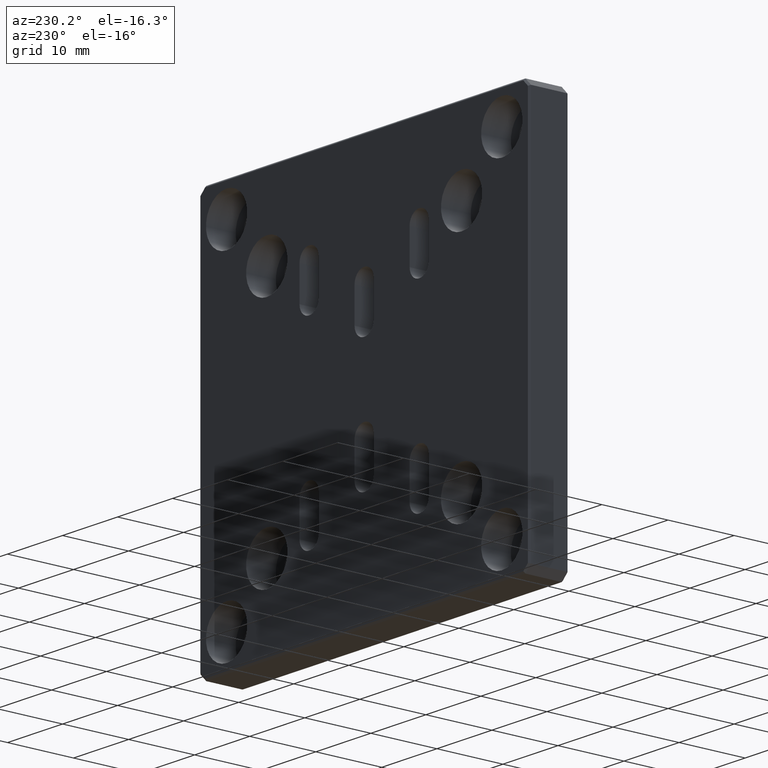
[diagram: clean part render]
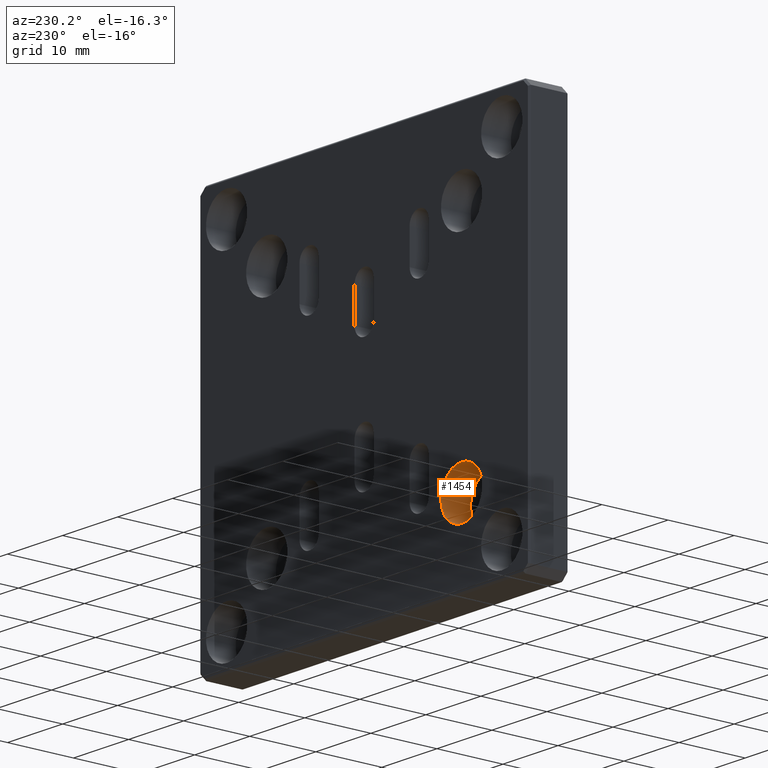
[diagram: same view with one face highlighted and labeled with its STEP entity id]
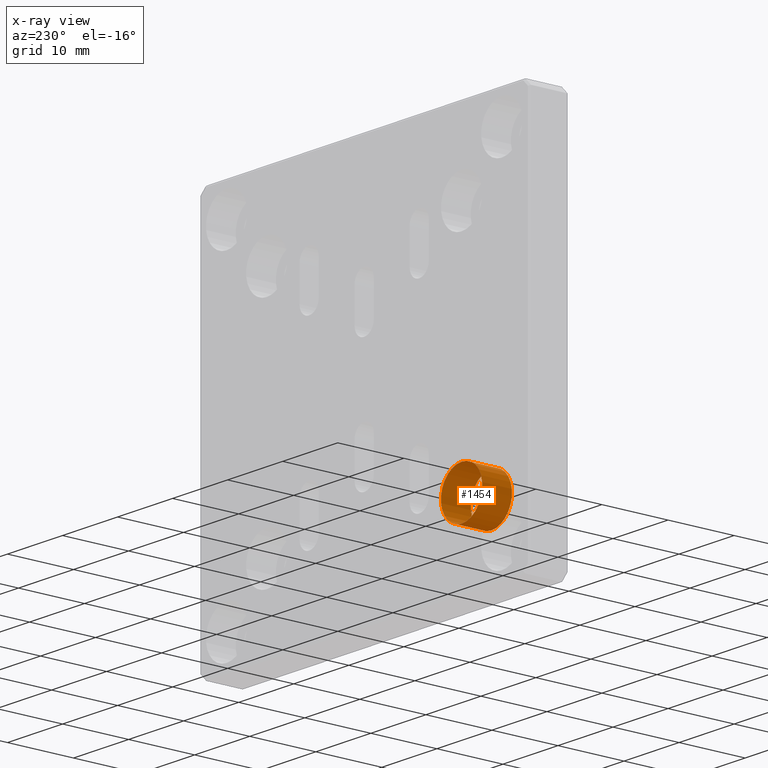
[diagram: x-ray of the same camera — body ghosted, the highlighted face saturated]
A machine part, auxiliary view. The second image highlights one B-rep face of the part: STEP entity #1454.
The next image is the same camera in x-ray: the body ghosted, the highlighted face saturated — about 0% of this face is hidden behind the body in this view.
In plain terms, the highlighted cylindrical surface (bore or boss wall) has radius 3.75 mm, axis along (-0, 1, -0).
Its self-contained STEP definition (entity closure, byte-faithful):
#73 = ORIENTED_EDGE ( 'NONE', *, *, #2642, .T. ) ;
#78 = EDGE_LOOP ( 'NONE', ( #73 ) ) ;
#109 = DIRECTION ( 'NONE',  ( -0.000000000000000000, 1.000000000000000000, -0.000000000000000000 ) ) ;
#213 = EDGE_CURVE ( 'NONE', #1461, #1461, #2721, .T. ) ;
#218 = FACE_OUTER_BOUND ( 'NONE', #2265, .T. ) ;
#254 = CARTESIAN_POINT ( 'NONE',  ( -17.70000000000000639, 1.499999999999999556, -13.94999999999999218 ) ) ;
#578 = CARTESIAN_POINT ( 'NONE',  ( -17.70000000000000639, 1.499999999999999556, -17.69999999999999218 ) ) ;
#659 = AXIS2_PLACEMENT_3D ( 'NONE', #578, #109, #1060 ) ;
#948 = CARTESIAN_POINT ( 'NONE',  ( -17.70000000000000639, 6.000000000000003553, -13.94999999999999041 ) ) ;
#970 = AXIS2_PLACEMENT_3D ( 'NONE', #2601, #2847, #2860 ) ;
#1060 = DIRECTION ( 'NONE',  ( 0.000000000000000000, 0.000000000000000000, 1.000000000000000000 ) ) ;
#1161 = FACE_OUTER_BOUND ( 'NONE', #78, .T. ) ;
#1328 = ORIENTED_EDGE ( 'NONE', *, *, #213, .F. ) ;
#1454 = ADVANCED_FACE ( 'NONE', ( #218, #1161 ), #2092, .F. ) ;
#1461 = VERTEX_POINT ( 'NONE', #254 ) ;
#1503 = AXIS2_PLACEMENT_3D ( 'NONE', #3014, #2522, #2807 ) ;
#2092 = CYLINDRICAL_SURFACE ( 'NONE', #1503, 3.750000000000003553 ) ;
#2265 = EDGE_LOOP ( 'NONE', ( #1328 ) ) ;
#2297 = CIRCLE ( 'NONE', #970, 3.750000000000003553 ) ;
#2375 = VERTEX_POINT ( 'NONE', #948 ) ;
#2522 = DIRECTION ( 'NONE',  ( -0.000000000000000000, 1.000000000000000000, -0.000000000000000000 ) ) ;
#2601 = CARTESIAN_POINT ( 'NONE',  ( -17.70000000000000639, 6.000000000000003553, -17.69999999999999218 ) ) ;
#2642 = EDGE_CURVE ( 'NONE', #2375, #2375, #2297, .T. ) ;
#2721 = CIRCLE ( 'NONE', #659, 3.750000000000001776 ) ;
#2807 = DIRECTION ( 'NONE',  ( 0.000000000000000000, 0.000000000000000000, 1.000000000000000000 ) ) ;
#2847 = DIRECTION ( 'NONE',  ( -0.000000000000000000, 1.000000000000000000, -0.000000000000000000 ) ) ;
#2860 = DIRECTION ( 'NONE',  ( 0.000000000000000000, 0.000000000000000000, 1.000000000000000000 ) ) ;
#3014 = CARTESIAN_POINT ( 'NONE',  ( -17.70000000000000639, 6.000000000000000000, -17.69999999999999218 ) ) ;